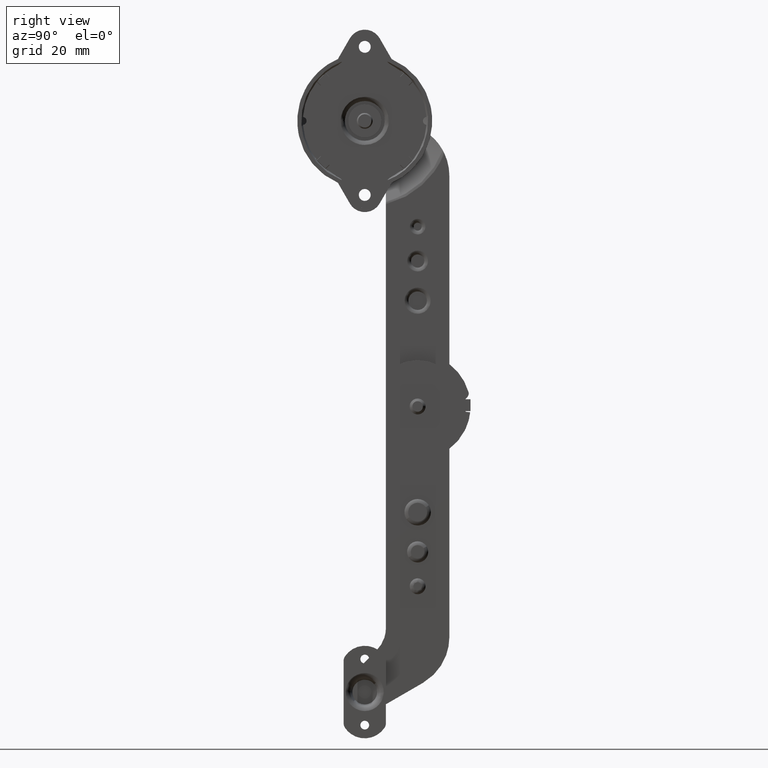
[diagram: clean part render]
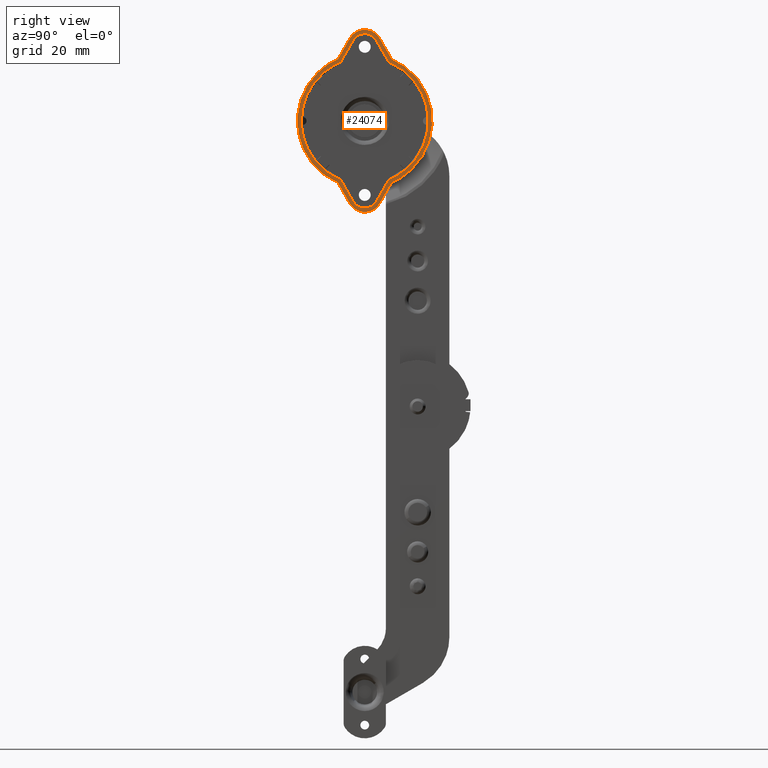
[diagram: same view with one face highlighted and labeled with its STEP entity id]
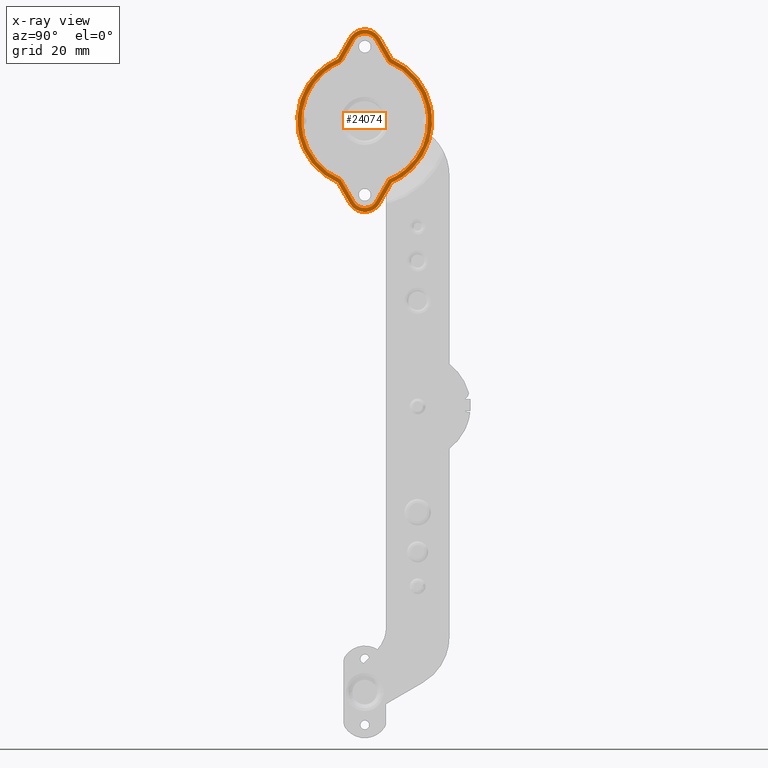
[diagram: x-ray of the same camera — body ghosted, the highlighted face saturated]
A machine part, right view. The second image highlights one B-rep face of the part: STEP entity #24074.
The next image is the same camera in x-ray: the body ghosted, the highlighted face saturated — about 0% of this face is hidden behind the body in this view.
In plain terms, the highlighted face is a freeform B-spline surface patch.
Its self-contained STEP definition (entity closure, byte-faithful):
#22522=CARTESIAN_POINT('',(8.600000000000378,-43.946081562567173,106.392151189018700));
#22523=VERTEX_POINT('',#22522);
#22529=CARTESIAN_POINT('',(8.600000000000300,-29.122964285863251,85.801542336484900));
#22530=VERTEX_POINT('',#22529);
#22531=CARTESIAN_POINT('',(8.600000000000300,-29.122964285863251,85.801542336484900));
#22532=CARTESIAN_POINT('',(8.600000000000375,-42.944946358585909,91.482002245936286));
#22533=CARTESIAN_POINT('',(8.600000000000378,-43.946081562567180,106.392151189018690));
#22541=(BOUNDED_CURVE()B_SPLINE_CURVE(2,(#22531,#22532,#22533),.UNSPECIFIED.,.F.,.U.)B_SPLINE_CURVE_WITH_KNOTS((3,3),(0.0,0.470186151864302),.UNSPECIFIED.)CURVE()GEOMETRIC_REPRESENTATION_ITEM()RATIONAL_B_SPLINE_CURVE((1.0,0.840794553252937,0.981013891953228))REPRESENTATION_ITEM(''));
#22542=EDGE_CURVE('',#22530,#22523,#22541,.T.);
#22566=CARTESIAN_POINT('',(8.600000000000300,-10.877034393459940,85.801542879248899));
#22567=VERTEX_POINT('',#22566);
#22573=CARTESIAN_POINT('',(8.600000000000380,3.946081562563268,109.607848810981300));
#22574=VERTEX_POINT('',#22573);
#22575=CARTESIAN_POINT('',(8.600000000000380,3.946081562563272,109.607848810981340));
#22576=CARTESIAN_POINT('',(8.600000000000378,3.999999999998051,108.804828469938560));
#22577=CARTESIAN_POINT('',(8.600000000000380,3.999999999998050,108.0));
#22578=CARTESIAN_POINT('',(8.600000000000380,3.999999999998050,91.915601723995053));
#22579=CARTESIAN_POINT('',(8.600000000000380,-10.877034393459731,85.801542879248387));
#22587=(BOUNDED_CURVE()B_SPLINE_CURVE(2,(#22575,#22576,#22577,#22578,#22579),.UNSPECIFIED.,.F.,.U.)B_SPLINE_CURVE_WITH_KNOTS((3,2,3),(0.470186150920434,0.500000000000000,1.0),.UNSPECIFIED.)CURVE()GEOMETRIC_REPRESENTATION_ITEM()RATIONAL_B_SPLINE_CURVE((0.981013893277010,0.989905005344254,1.0,0.830699574737822,1.0))REPRESENTATION_ITEM(''));
#22588=EDGE_CURVE('',#22574,#22567,#22587,.T.);
#22621=CARTESIAN_POINT('',(8.600000000000460,-10.877034393461081,130.198457120752610));
#22622=VERTEX_POINT('',#22621);
#22623=CARTESIAN_POINT('',(8.600000000000460,-10.877034393461081,130.198457120752610));
#22624=CARTESIAN_POINT('',(8.600000000000385,2.944946424954116,124.517996765569050));
#22625=CARTESIAN_POINT('',(8.600000000000380,3.946081562563271,109.607848810981340));
#22633=(BOUNDED_CURVE()B_SPLINE_CURVE(2,(#22623,#22624,#22625),.UNSPECIFIED.,.F.,.U.)B_SPLINE_CURVE_WITH_KNOTS((3,3),(0.0,0.470186150920434),.UNSPECIFIED.)CURVE()GEOMETRIC_REPRESENTATION_ITEM()RATIONAL_B_SPLINE_CURVE((1.0,0.840794569393568,0.981013893277010))REPRESENTATION_ITEM(''));
#22634=EDGE_CURVE('',#22622,#22574,#22633,.T.);
#22658=CARTESIAN_POINT('',(8.600000000000460,-29.122964243853598,130.198457680780990));
#22659=VERTEX_POINT('',#22658);
#22665=CARTESIAN_POINT('',(8.600000000000380,-43.946081562567173,106.392151189018690));
#22666=CARTESIAN_POINT('',(8.600000000000378,-44.000000000763507,107.195171541403450));
#22667=CARTESIAN_POINT('',(8.600000000000380,-44.000000000001947,108.000000022709700));
#22668=CARTESIAN_POINT('',(8.600000000000380,-43.999999984782285,124.084399349759520));
#22669=CARTESIAN_POINT('',(8.600000000000380,-29.122964243853431,130.198457680780590));
#22677=(BOUNDED_CURVE()B_SPLINE_CURVE(2,(#22665,#22666,#22667,#22668,#22669),.UNSPECIFIED.,.F.,.U.)B_SPLINE_CURVE_WITH_KNOTS((3,2,3),(0.470186151864302,0.500000000000000,1.0),.UNSPECIFIED.)CURVE()GEOMETRIC_REPRESENTATION_ITEM()RATIONAL_B_SPLINE_CURVE((0.981013891953228,0.989905004660659,1.0,0.830699557913596,1.0))REPRESENTATION_ITEM(''));
#22678=EDGE_CURVE('',#22523,#22659,#22677,.T.);
#23564=CARTESIAN_POINT('',(8.600000000000271,-15.658560701663699,77.519696627655691));
#23565=VERTEX_POINT('',#23564);
#23571=CARTESIAN_POINT('',(8.600000000000271,-15.658560701663699,77.519696627655691));
#23572=CARTESIAN_POINT('',(8.600000000000300,-10.877034393459940,85.801542879248899));
#23573=QUASI_UNIFORM_CURVE('',1,(#23571,#23572),.UNSPECIFIED.,.F.,.U.);
#23574=EDGE_CURVE('',#23565,#22567,#23573,.T.);
#23593=CARTESIAN_POINT('',(8.600000000000271,-24.341521110326951,77.519839834086497));
#23594=VERTEX_POINT('',#23593);
#23595=CARTESIAN_POINT('',(8.600000000000300,-29.122964285863251,85.801542336484900));
#23596=CARTESIAN_POINT('',(8.600000000000271,-24.341521110326951,77.519839834086497));
#23597=QUASI_UNIFORM_CURVE('',1,(#23595,#23596),.UNSPECIFIED.,.F.,.U.);
#23598=EDGE_CURVE('',#22530,#23594,#23597,.T.);
#23623=CARTESIAN_POINT('',(8.600000000000271,-15.658560701663699,77.519696627655691));
#23624=CARTESIAN_POINT('',(8.600000000000234,-15.862311313659109,77.162972731204846));
#23625=CARTESIAN_POINT('',(8.600000000000238,-16.440864521534500,76.389361897378834));
#23626=CARTESIAN_POINT('',(8.600000000000238,-17.575668194439299,75.542819820747411));
#23627=CARTESIAN_POINT('',(8.600000000000220,-18.901740892401190,75.066383443571780));
#23628=CARTESIAN_POINT('',(8.600000000000275,-20.001117610387841,74.966814790374059));
#23629=CARTESIAN_POINT('',(8.600000000000200,-21.120766545786431,75.086833280844360));
#23630=CARTESIAN_POINT('',(8.600000000000261,-22.118205574548352,75.417891008021698));
#23631=CARTESIAN_POINT('',(8.600000000000234,-23.355247196677499,76.191229877222710));
#23632=CARTESIAN_POINT('',(8.600000000000227,-24.015974071544861,76.948614908939803));
#23633=CARTESIAN_POINT('',(8.600000000000271,-24.341521110326951,77.519839834086497));
#23634=B_SPLINE_CURVE_WITH_KNOTS('',3,(#23623,#23624,#23625,#23626,#23627,#23628,#23629,#23630,#23631,#23632,#23633),.UNSPECIFIED.,.F.,.U.,(4,1,1,1,1,1,1,1,4),(0.000000780881315,1.232493498350715,2.875932390998580,4.190717642274947,5.423119232780440,6.162652227430940,7.559569836829224,8.545647068310824,10.517686775671750),.UNSPECIFIED.);
#23635=EDGE_CURVE('',#23565,#23594,#23634,.T.);
#23661=CARTESIAN_POINT('',(8.600000000000490,-24.341466784107851,138.480255261558400));
#23662=VERTEX_POINT('',#23661);
#23668=CARTESIAN_POINT('',(8.600000000000460,-29.122964243853598,130.198457680780990));
#23669=CARTESIAN_POINT('',(8.600000000000490,-24.341466784107851,138.480255261558400));
#23670=QUASI_UNIFORM_CURVE('',1,(#23668,#23669),.UNSPECIFIED.,.F.,.U.);
#23671=EDGE_CURVE('',#22659,#23662,#23670,.T.);
#23688=CARTESIAN_POINT('',(8.600000000000490,-15.658560701612350,138.480303372254610));
#23689=VERTEX_POINT('',#23688);
#23690=CARTESIAN_POINT('',(8.600000000000490,-15.658560701612350,138.480303372254610));
#23691=CARTESIAN_POINT('',(8.600000000000460,-10.877034393461081,130.198457120752610));
#23692=QUASI_UNIFORM_CURVE('',1,(#23690,#23691),.UNSPECIFIED.,.F.,.U.);
#23693=EDGE_CURVE('',#23689,#22622,#23692,.T.);
#23740=CARTESIAN_POINT('',(8.600000000000490,-24.341466784107851,138.480255261558400));
#23741=CARTESIAN_POINT('',(8.600000000000410,-24.110644842454469,138.884630855787210));
#23742=CARTESIAN_POINT('',(8.600000000000449,-23.636404023027410,139.496789168579000));
#23743=CARTESIAN_POINT('',(8.600000000000419,-22.654380985568860,140.294365330775610));
#23744=CARTESIAN_POINT('',(8.600000000000469,-21.528982341407389,140.829338175740900));
#23745=CARTESIAN_POINT('',(8.600000000000401,-20.302506039129579,141.032561053821300));
#23746=CARTESIAN_POINT('',(8.600000000000453,-19.149347524907348,140.966143015530290));
#23747=CARTESIAN_POINT('',(8.600000000000440,-18.032600810877920,140.655776618201400));
#23748=CARTESIAN_POINT('',(8.600000000000408,-16.718251140457529,139.893161856928800));
#23749=CARTESIAN_POINT('',(8.600000000000600,-15.984124651413380,139.051475770298000));
#23750=CARTESIAN_POINT('',(8.600000000000490,-15.658560701612350,138.480303372254610));
#23751=B_SPLINE_CURVE_WITH_KNOTS('',3,(#23740,#23741,#23742,#23743,#23744,#23745,#23746,#23747,#23748,#23749,#23750),.UNSPECIFIED.,.F.,.U.,(4,1,1,1,1,1,1,1,4),(0.000000780911561,1.396809675894433,2.300708419446117,3.779768821039824,5.094517071576962,5.998279606092233,7.230808150974509,8.545558079763367,10.517577252583450),.UNSPECIFIED.);
#23752=EDGE_CURVE('',#23662,#23689,#23751,.T.);
#23781=CARTESIAN_POINT('',(8.600000000000341,-14.357930626845860,76.772453999008491));
#23782=VERTEX_POINT('',#23781);
#23783=CARTESIAN_POINT('',(8.600000000000192,-9.829434032275492,84.616039944096386));
#23784=VERTEX_POINT('',#23783);
#23785=CARTESIAN_POINT('',(8.600000000000341,-14.357930626845860,76.772453999008491));
#23786=CARTESIAN_POINT('',(8.600000000000192,-9.829434032275492,84.616039944096386));
#23787=QUASI_UNIFORM_CURVE('',1,(#23785,#23786),.UNSPECIFIED.,.F.,.U.);
#23788=EDGE_CURVE('',#23782,#23784,#23787,.T.);
#23815=CARTESIAN_POINT('',(8.600000000000192,-30.170564632409452,84.616039363315892));
#23816=VERTEX_POINT('',#23815);
#23817=CARTESIAN_POINT('',(8.600000000000341,-25.642162749624251,76.772617235785305));
#23818=VERTEX_POINT('',#23817);
#23819=CARTESIAN_POINT('',(8.600000000000192,-30.170564632409452,84.616039363315892));
#23820=CARTESIAN_POINT('',(8.600000000000341,-25.642162749624251,76.772617235785305));
#23821=QUASI_UNIFORM_CURVE('',1,(#23819,#23820),.UNSPECIFIED.,.F.,.U.);
#23822=EDGE_CURVE('',#23816,#23818,#23821,.T.);
#23858=CARTESIAN_POINT('',(8.600000000000341,-14.357930626845860,76.772453999008491));
#23859=CARTESIAN_POINT('',(8.600000000000351,-14.711004481264871,76.154390019711329));
#23860=CARTESIAN_POINT('',(8.600000000000360,-15.372309116460190,75.344098581849138));
#23861=CARTESIAN_POINT('',(8.600000000000334,-16.566668644361041,74.438567749303516));
#23862=CARTESIAN_POINT('',(8.600000000000360,-17.524874927633061,73.954128846498179));
#23863=CARTESIAN_POINT('',(8.600000000000346,-18.753062781456169,73.580031059627530));
#23864=CARTESIAN_POINT('',(8.600000000000344,-20.179186959194539,73.427025738658529));
#23865=CARTESIAN_POINT('',(8.600000000000359,-21.705615642392999,73.667222740309327));
#23866=CARTESIAN_POINT('',(8.600000000000346,-23.095994098694980,74.232412777190973));
#23867=CARTESIAN_POINT('',(8.600000000000343,-24.464242052668350,75.150853029883834));
#23868=CARTESIAN_POINT('',(8.600000000000357,-25.271496788587331,76.123623976721916));
#23869=CARTESIAN_POINT('',(8.600000000000341,-25.642162749624251,76.772617235785305));
#23870=B_SPLINE_CURVE_WITH_KNOTS('',3,(#23858,#23859,#23860,#23861,#23862,#23863,#23864,#23865,#23866,#23867,#23868,#23869),.UNSPECIFIED.,.F.,.U.,(4,1,1,1,1,1,1,1,1,4),(0.000000724868610,2.135214470831544,3.096136679961393,4.484063424938958,5.338172069226028,6.939494022585077,8.754527552037805,9.928981918270717,11.423717273738900,13.665705671417751),.UNSPECIFIED.);
#23871=EDGE_CURVE('',#23782,#23818,#23870,.T.);
#23898=CARTESIAN_POINT('',(8.600000000000360,-30.170564632409452,131.383960636685000));
#23899=VERTEX_POINT('',#23898);
#23900=CARTESIAN_POINT('',(8.600000000000570,-25.642100769296750,139.227491116811990));
#23901=VERTEX_POINT('',#23900);
#23902=CARTESIAN_POINT('',(8.600000000000360,-30.170564632409452,131.383960636685000));
#23903=CARTESIAN_POINT('',(8.600000000000570,-25.642100769296750,139.227491116811990));
#23904=QUASI_UNIFORM_CURVE('',1,(#23902,#23903),.UNSPECIFIED.,.F.,.U.);
#23905=EDGE_CURVE('',#23899,#23901,#23904,.T.);
#23932=CARTESIAN_POINT('',(8.600000000000570,-14.357930626788679,139.227546000891810));
#23933=VERTEX_POINT('',#23932);
#23934=CARTESIAN_POINT('',(8.600000000000360,-9.829434032276360,131.383960055904990));
#23935=VERTEX_POINT('',#23934);
#23936=CARTESIAN_POINT('',(8.600000000000570,-14.357930626788679,139.227546000891810));
#23937=CARTESIAN_POINT('',(8.600000000000360,-9.829434032276360,131.383960055904990));
#23938=QUASI_UNIFORM_CURVE('',1,(#23936,#23937),.UNSPECIFIED.,.F.,.U.);
#23939=EDGE_CURVE('',#23933,#23935,#23938,.T.);
#23975=CARTESIAN_POINT('',(8.600000000000570,-25.642100769296750,139.227491116811990));
#23976=CARTESIAN_POINT('',(8.600000000000534,-25.271451675278051,139.876484329112000));
#23977=CARTESIAN_POINT('',(8.600000000000572,-24.394969685822488,140.932686971156500));
#23978=CARTESIAN_POINT('',(8.600000000000513,-22.848665305806499,141.916442795322010));
#23979=CARTESIAN_POINT('',(8.600000000000611,-21.489771820496550,142.367006996103300));
#23980=CARTESIAN_POINT('',(8.600000000000497,-20.179991102695610,142.540135542157200));
#23981=CARTESIAN_POINT('',(8.600000000000621,-18.964723380746921,142.460180762184790));
#23982=CARTESIAN_POINT('',(8.600000000000458,-17.654391966817411,142.107709209773790));
#23983=CARTESIAN_POINT('',(8.600000000000598,-16.402412031722850,141.487667184995900));
#23984=CARTESIAN_POINT('',(8.600000000000481,-15.221185696976740,140.496621620043410));
#23985=CARTESIAN_POINT('',(8.600000000000527,-14.605245403144050,139.660042834215490));
#23986=CARTESIAN_POINT('',(8.600000000000570,-14.357930626788679,139.227546000891810));
#23987=B_SPLINE_CURVE_WITH_KNOTS('',3,(#23975,#23976,#23977,#23978,#23979,#23980,#23981,#23982,#23983,#23984,#23985,#23986),.UNSPECIFIED.,.F.,.U.,(4,1,1,1,1,1,1,1,1,4),(0.000000724852571,2.242005759941074,4.057000195997668,5.444963573601573,6.512519813958718,8.007156979767004,9.074758669668771,10.569480370006589,12.170932294533790,13.665580840057840),.UNSPECIFIED.);
#23988=EDGE_CURVE('',#23901,#23933,#23987,.T.);
#24010=CARTESIAN_POINT('',(8.600000000000380,8.047449901150156,145.946549866149890));
#24011=CARTESIAN_POINT('',(8.600000000000380,8.047449901150156,70.053448283729082));
#24012=CARTESIAN_POINT('',(8.600000000000380,-48.047451269080653,145.946549866149890));
#24013=CARTESIAN_POINT('',(8.600000000000380,-48.047451269080653,70.053448283729082));
#24014=B_SPLINE_SURFACE_WITH_KNOTS('',1,1,((#24010,#24012),(#24011,#24013)),.UNSPECIFIED.,.F.,.F.,.U.,(2,2),(2,2),(0.0,75.893101582420812),(0.0,56.094901170230798),.UNSPECIFIED.);
#24015=CARTESIAN_POINT('',(8.600000000000360,-9.829434032276360,131.383960055904990));
#24016=CARTESIAN_POINT('',(8.600000000000394,-7.638066879788064,130.431968204728010));
#24017=CARTESIAN_POINT('',(8.600000000000334,-4.853626116614343,128.719963047205310));
#24018=CARTESIAN_POINT('',(8.600000000000305,-1.153721953813634,125.333546635117600));
#24019=CARTESIAN_POINT('',(8.600000000000305,1.220284962640861,122.370488494815400));
#24020=CARTESIAN_POINT('',(8.600000000000296,3.567157498455678,118.107124139162710));
#24021=CARTESIAN_POINT('',(8.600000000000286,4.892181103448079,114.133920429518800));
#24022=CARTESIAN_POINT('',(8.600000000000287,5.528137248207103,109.778395033204010));
#24023=CARTESIAN_POINT('',(8.600000000000273,5.528253253397235,105.834968599550000));
#24024=CARTESIAN_POINT('',(8.600000000000271,4.727826640165040,101.106301586604600));
#24025=CARTESIAN_POINT('',(8.600000000000311,3.029259866533103,96.690398754924274));
#24026=CARTESIAN_POINT('',(8.600000000000190,0.411343844507232,92.492739978010619));
#24027=CARTESIAN_POINT('',(8.600000000000541,-2.547090652468020,89.215965267230999));
#24028=CARTESIAN_POINT('',(8.599999999999794,-6.103723794109314,86.483959534254552));
#24029=CARTESIAN_POINT('',(8.600000000000703,-8.557316548668597,85.169241678904299));
#24030=CARTESIAN_POINT('',(8.600000000000192,-9.829434032275492,84.616039944096386));
#24031=B_SPLINE_CURVE_WITH_KNOTS('',3,(#24015,#24016,#24017,#24018,#24019,#24020,#24021,#24022,#24023,#24024,#24025,#24026,#24027,#24028,#24029,#24030),.UNSPECIFIED.,.F.,.U.,(4,1,1,1,1,1,1,1,1,1,1,1,1,4),(0.000000405477593,7.167227865169586,9.710436961946712,15.028125080656940,18.496186186646959,24.276281953432370,27.513153527220190,31.674523121827189,36.067392790042582,41.847514078942623,45.777979025718302,50.864474736956872,55.026073319260263,59.187668939500632),.UNSPECIFIED.);
#24032=EDGE_CURVE('',#23935,#23784,#24031,.T.);
#24033=ORIENTED_EDGE('',*,*,#24032,.F.);
#24034=ORIENTED_EDGE('',*,*,#23939,.F.);
#24035=ORIENTED_EDGE('',*,*,#23988,.F.);
#24036=ORIENTED_EDGE('',*,*,#23905,.F.);
#24037=CARTESIAN_POINT('',(8.600000000000192,-30.170564632409452,84.616039363315892));
#24038=CARTESIAN_POINT('',(8.600000000000195,-31.796120772602240,85.322737283648621));
#24039=CARTESIAN_POINT('',(8.600000000000225,-34.494002058234067,86.848481908438714));
#24040=CARTESIAN_POINT('',(8.600000000000232,-38.231657744869104,89.970023968205822));
#24041=CARTESIAN_POINT('',(8.600000000000286,-40.857112681037897,93.127947065649877));
#24042=CARTESIAN_POINT('',(8.600000000000227,-43.122338400046011,96.990475800273288));
#24043=CARTESIAN_POINT('',(8.600000000000341,-44.416413989893279,100.309861650677310));
#24044=CARTESIAN_POINT('',(8.600000000000236,-45.283334544619002,104.148583577844700));
#24045=CARTESIAN_POINT('',(8.600000000000295,-45.577340416488951,107.382767715301200));
#24046=CARTESIAN_POINT('',(8.600000000000273,-45.392643652034153,111.083770477074100));
#24047=CARTESIAN_POINT('',(8.600000000000286,-44.821280802927980,114.122305435305190));
#24048=CARTESIAN_POINT('',(8.600000000000282,-43.767918362110493,117.430264219494700));
#24049=CARTESIAN_POINT('',(8.600000000000254,-42.040505503338721,121.146673773734800));
#24050=CARTESIAN_POINT('',(8.600000000000190,-39.343879752023852,124.843937984532800));
#24051=CARTESIAN_POINT('',(8.600000000000874,-35.347470980711329,128.602684560076910));
#24052=CARTESIAN_POINT('',(8.599999999999362,-32.291146853259569,130.462553303125590));
#24053=CARTESIAN_POINT('',(8.600000000000360,-30.170564632409452,131.383960636685000));
#24054=B_SPLINE_CURVE_WITH_KNOTS('',3,(#24037,#24038,#24039,#24040,#24041,#24042,#24043,#24044,#24045,#24046,#24047,#24048,#24049,#24050,#24051,#24052,#24053),.UNSPECIFIED.,.F.,.U.,(4,1,1,1,1,1,1,1,1,1,1,1,1,1,4),(0.000000406031802,5.317534354657205,9.248055940569394,14.565718057199421,17.571347809786239,22.657818356495731,25.201117681219930,29.362753322367620,32.368130258539473,36.298635267702281,38.610688306479403,42.772338712805613,48.552420546005173,52.251687622536593,59.187671851835027),.UNSPECIFIED.);
#24055=EDGE_CURVE('',#23816,#23899,#24054,.T.);
#24056=ORIENTED_EDGE('',*,*,#24055,.F.);
#24057=ORIENTED_EDGE('',*,*,#23822,.T.);
#24058=ORIENTED_EDGE('',*,*,#23871,.F.);
#24059=ORIENTED_EDGE('',*,*,#23788,.T.);
#24060=EDGE_LOOP('',(#24033,#24034,#24035,#24036,#24056,#24057,#24058,#24059));
#24061=FACE_OUTER_BOUND('',#24060,.T.);
#24062=ORIENTED_EDGE('',*,*,#23752,.T.);
#24063=ORIENTED_EDGE('',*,*,#23693,.T.);
#24064=ORIENTED_EDGE('',*,*,#22634,.T.);
#24065=ORIENTED_EDGE('',*,*,#22588,.T.);
#24066=ORIENTED_EDGE('',*,*,#23574,.F.);
#24067=ORIENTED_EDGE('',*,*,#23635,.T.);
#24068=ORIENTED_EDGE('',*,*,#23598,.F.);
#24069=ORIENTED_EDGE('',*,*,#22542,.T.);
#24070=ORIENTED_EDGE('',*,*,#22678,.T.);
#24071=ORIENTED_EDGE('',*,*,#23671,.T.);
#24072=EDGE_LOOP('',(#24062,#24063,#24064,#24065,#24066,#24067,#24068,#24069,#24070,#24071));
#24073=FACE_BOUND('',#24072,.T.);
#24074=ADVANCED_FACE('',(#24061,#24073),#24014,.F.);